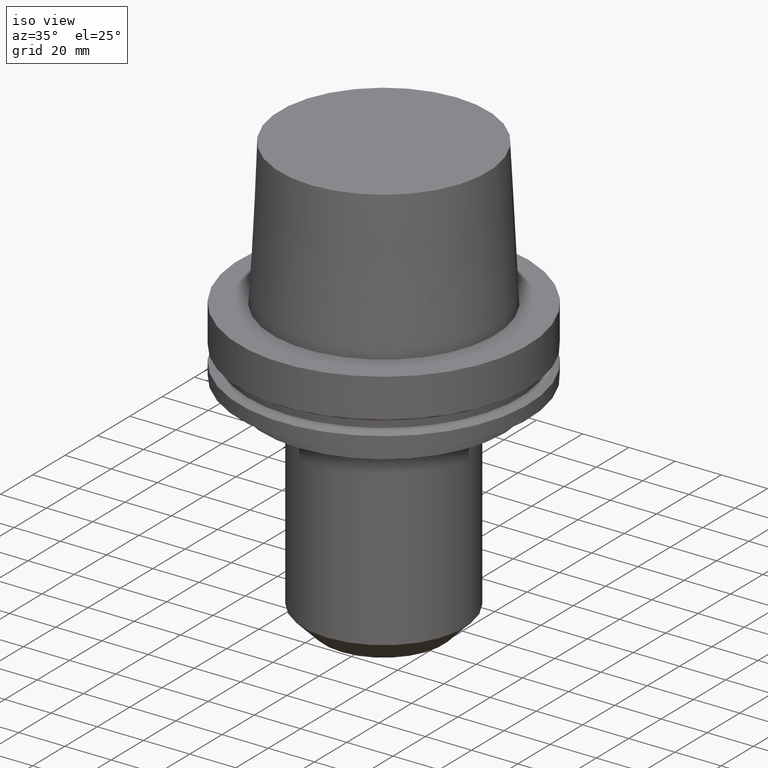
[diagram: clean part render]
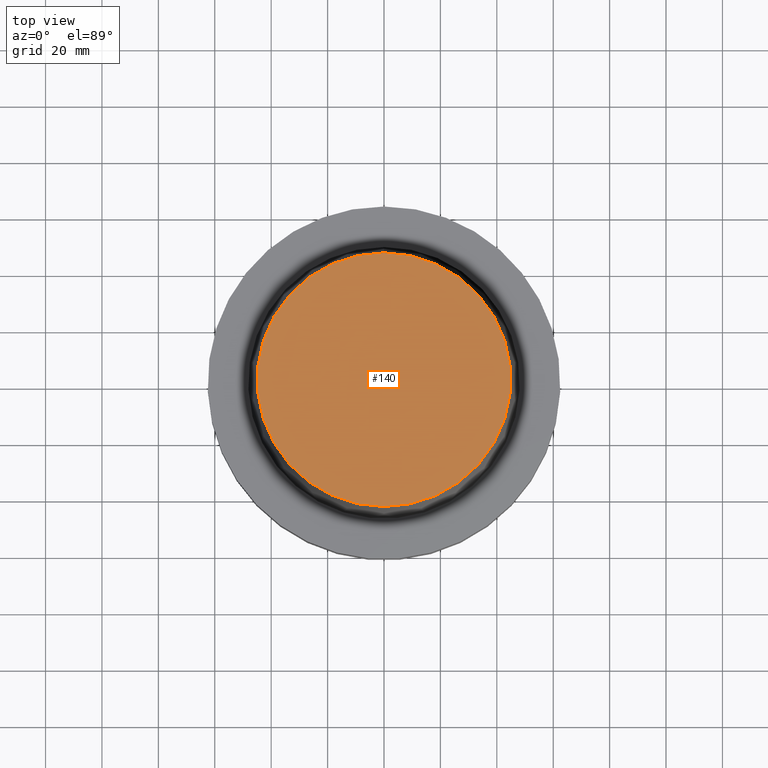
[diagram: tour spotlight — one face highlighted and labeled with its STEP entity id]
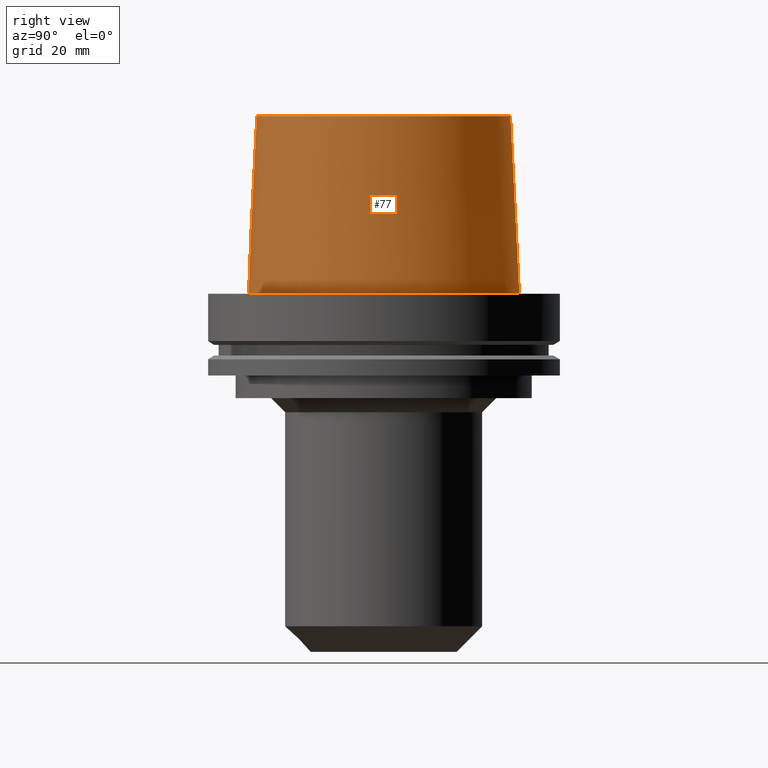
[diagram: tour spotlight — one face highlighted and labeled with its STEP entity id]
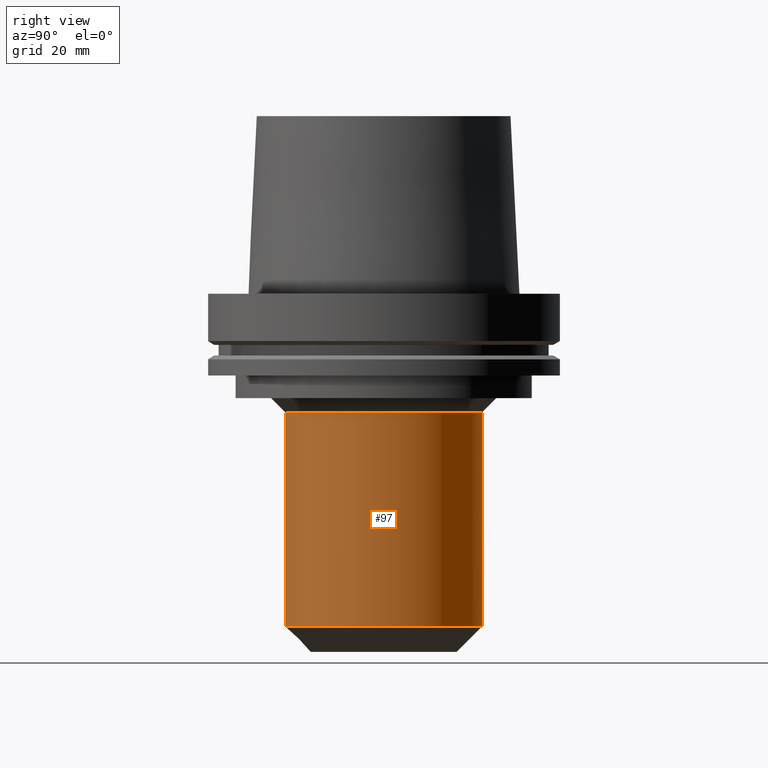
[diagram: tour spotlight — one face highlighted and labeled with its STEP entity id]
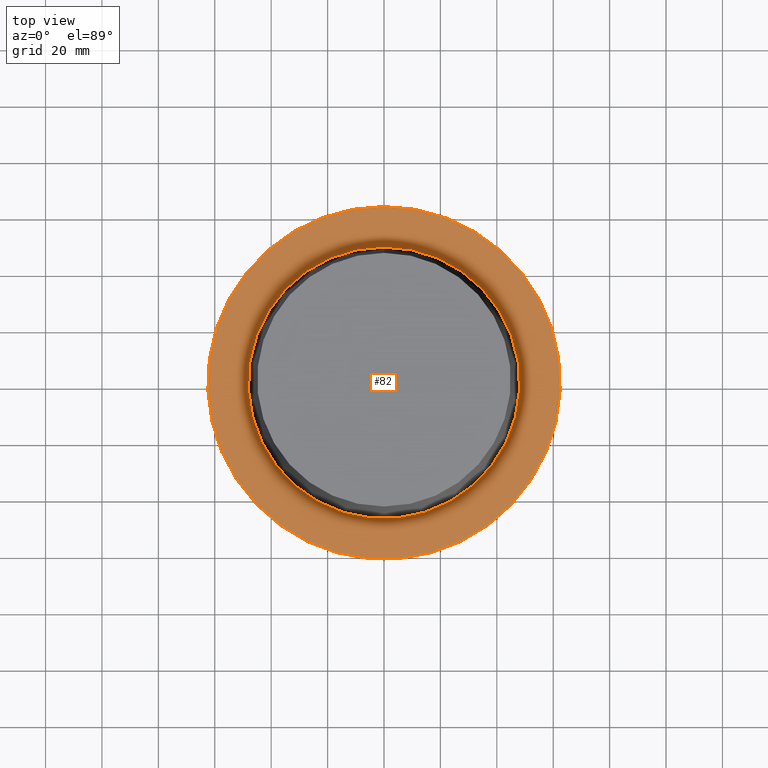
[diagram: tour spotlight — one face highlighted and labeled with its STEP entity id]
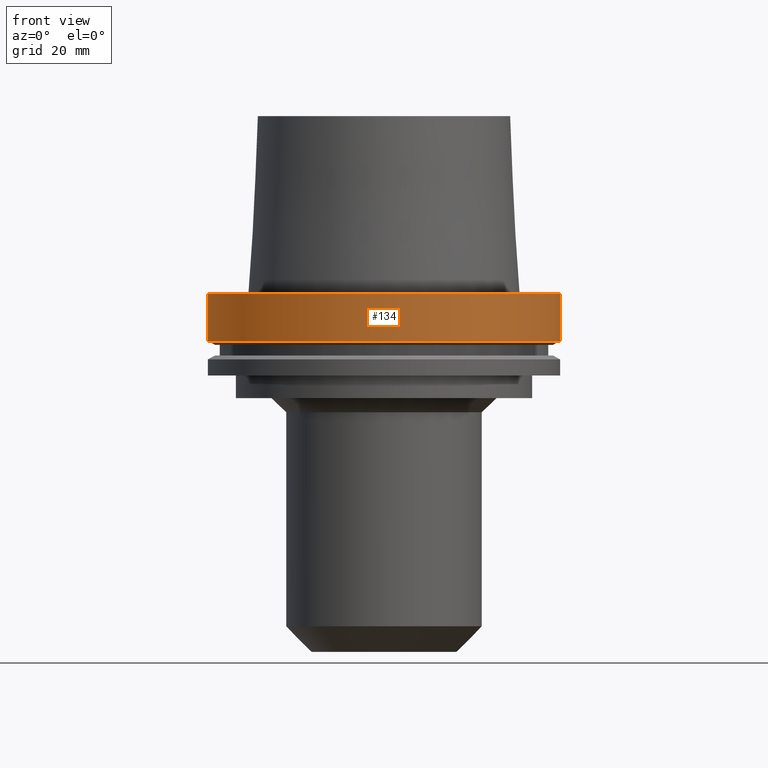
[diagram: tour spotlight — one face highlighted and labeled with its STEP entity id]
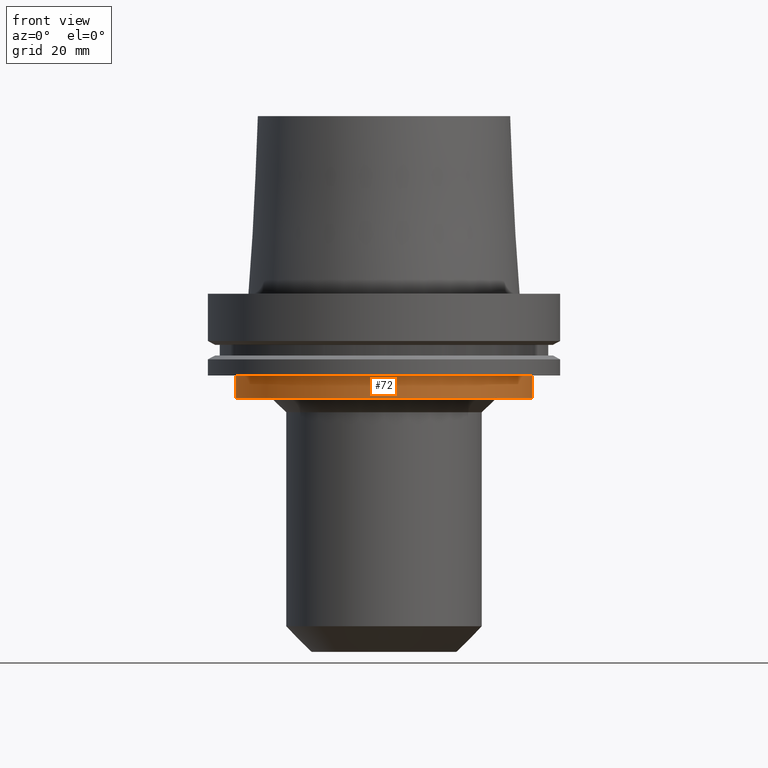
[diagram: tour spotlight — one face highlighted and labeled with its STEP entity id]
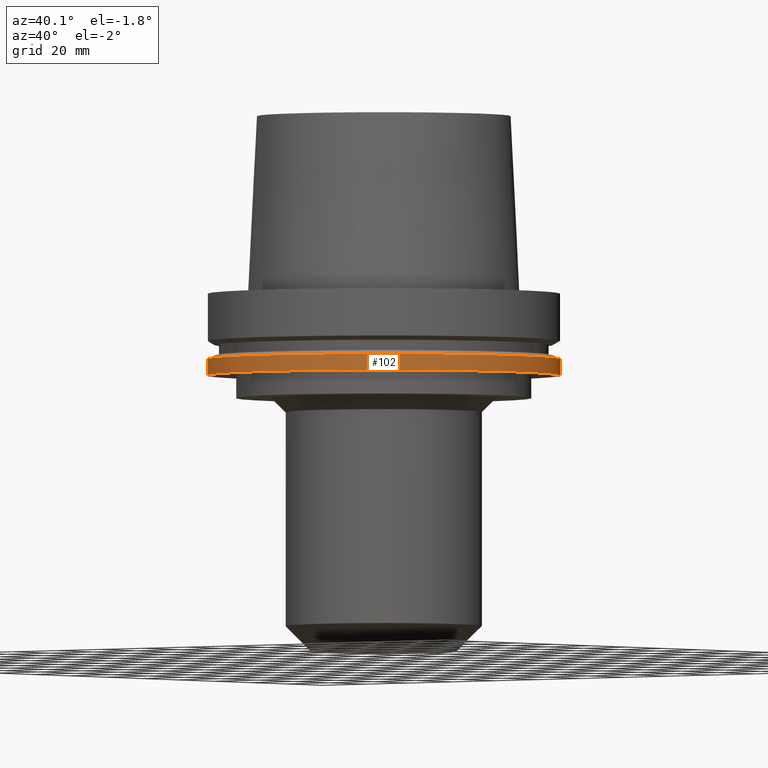
[diagram: tour spotlight — one face highlighted and labeled with its STEP entity id]
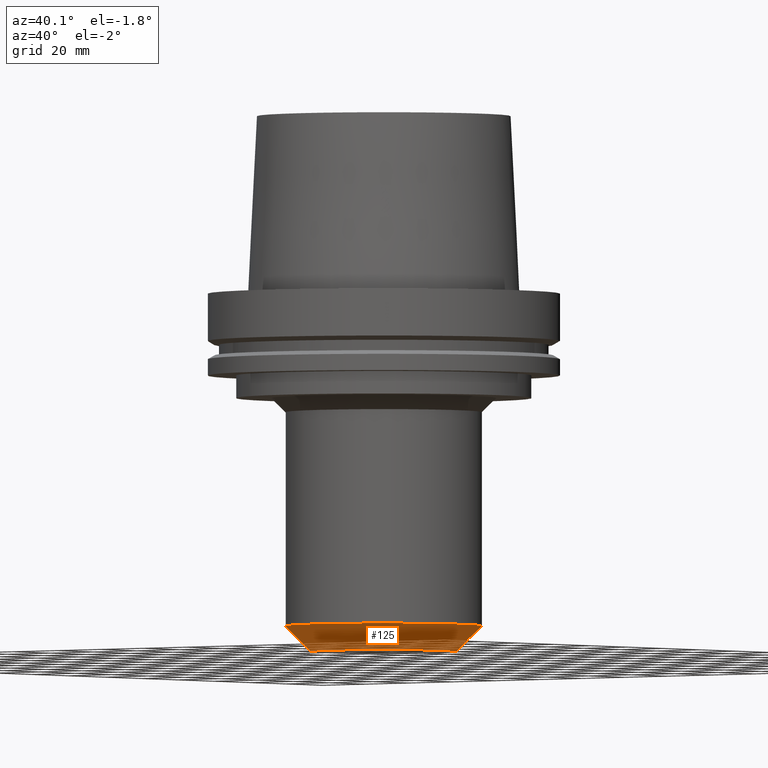
[diagram: tour spotlight — one face highlighted and labeled with its STEP entity id]
A machine part: a face-by-face anatomy tour. The part has 17 B-rep faces; the first image is the clean iso view, then the 8 largest visible faces are spotlighted one at a time (largest first), each with its STEP entity span.

Face 1 — top view, entity #140. In plain terms, the highlighted planar face has unit normal (-0, -0, 1).
Definition (entity closure, byte-faithful):
#74=EDGE_CURVE('Unnamed[1]',#183,#183,#184,.T.);
#140=ADVANCED_FACE('Unnamed[1]',(#288),#289,.T.);
#183=VERTEX_POINT('',#329);
#184=CIRCLE('',#330,44.9779398797591);
#288=FACE_OUTER_BOUND('',#460,.T.);
#289=PLANE('',#461);
#329=CARTESIAN_POINT('',(-3.85763741731415E-015,44.9779398797591,62.9999999999999));
#330=AXIS2_PLACEMENT_3D('',#491,#492,#493);
#460=EDGE_LOOP('',(#609));
#461=AXIS2_PLACEMENT_3D('',#610,#611,#612);
#491=CARTESIAN_POINT('',(-3.85763741731415E-015,-7.71527483462831E-015,62.9999999999999));
#492=DIRECTION('',(6.12323399573677E-017,1.22464679914735E-016,-1.0));
#493=DIRECTION('',(-1.23259516440783E-032,1.0,1.22464679914735E-016));
#609=ORIENTED_EDGE('',*,*,#74,.F.);
#610=CARTESIAN_POINT('',(-3.85763741731415E-015,22.4889699398795,62.9999999999999));
#611=DIRECTION('',(-6.12323399573677E-017,-1.22464679914735E-016,1.0));
#612=DIRECTION('',(1.23259516440783E-032,-1.0,-1.22464679914735E-016));

Face 2 — right view, entity #77. In plain terms, the highlighted conical surface has half-angle 2.868 deg.
Definition (entity closure, byte-faithful):
#74=EDGE_CURVE('Unnamed[1]',#183,#183,#184,.T.);
#77=ADVANCED_FACE('Unnamed[1]',(#187,#188),#189,.T.);
#79=EDGE_CURVE('Unnamed[1]',#191,#191,#192,.T.);
#183=VERTEX_POINT('',#329);
#184=CIRCLE('',#330,44.9779398797591);
#187=FACE_BOUND('',#334,.T.);
#188=FACE_BOUND('',#335,.T.);
#189=CONICAL_SURFACE('',#336,46.5560961923844,0.0500583457465986);
#191=VERTEX_POINT('',#339);
#192=CIRCLE('',#340,48.1342525050097);
#329=CARTESIAN_POINT('',(-3.85763741731415E-015,44.9779398797591,62.9999999999999));
#330=AXIS2_PLACEMENT_3D('',#491,#492,#493);
#334=EDGE_LOOP('',(#495));
#335=EDGE_LOOP('',(#496));
#336=AXIS2_PLACEMENT_3D('',#497,#498,#499);
#339=CARTESIAN_POINT('',(4.05732016845377E-029,48.1342525050097,-6.66405254174039E-013));
#340=AXIS2_PLACEMENT_3D('',#500,#501,#502);
#491=CARTESIAN_POINT('',(-3.85763741731415E-015,-7.71527483462831E-015,62.9999999999999));
#492=DIRECTION('',(6.12323399573677E-017,1.22464679914735E-016,-1.0));
#493=DIRECTION('',(-1.23259516440783E-032,1.0,1.22464679914735E-016));
#495=ORIENTED_EDGE('',*,*,#79,.F.);
#496=ORIENTED_EDGE('',*,*,#74,.T.);
#497=CARTESIAN_POINT('',(-1.92881870865706E-015,-3.85763741731411E-015,31.4999999999996));
#498=DIRECTION('',(6.12323399573677E-017,1.22464679914735E-016,-1.0));
#499=DIRECTION('',(-1.23259516440783E-032,1.0,1.22464679914735E-016));
#500=CARTESIAN_POINT('',(4.08977026892825E-029,8.1795405378565E-029,-6.67910171614494E-013));
#501=DIRECTION('',(6.12323399573677E-017,1.22464679914735E-016,-1.0));
#502=DIRECTION('',(-1.23259516440783E-032,1.0,1.22464679914735E-016));

Face 3 — right view, entity #97. In plain terms, the highlighted cylindrical surface (bore or boss wall) has radius 34.925 mm, axis along (0, 0, -1).
Definition (entity closure, byte-faithful):
#58=EDGE_CURVE('Unnamed[1]',#160,#160,#161,.T.);
#97=ADVANCED_FACE('Unnamed[1]',(#218,#219),#220,.T.);
#111=EDGE_CURVE('Unnamed[1]',#241,#241,#242,.T.);
#160=VERTEX_POINT('',#301);
#161=CIRCLE('',#302,34.9249999999999);
#218=FACE_BOUND('',#374,.T.);
#219=FACE_BOUND('',#375,.T.);
#220=CYLINDRICAL_SURFACE('',#376,34.9249999999999);
#241=VERTEX_POINT('',#403);
#242=CIRCLE('',#404,34.9249999999999);
#301=CARTESIAN_POINT('',(2.57175827820967E-015,34.9249999999999,-42.0000000000037));
#302=AXIS2_PLACEMENT_3D('',#467,#468,#469);
#374=EDGE_LOOP('',(#528));
#375=EDGE_LOOP('',(#529));
#376=AXIS2_PLACEMENT_3D('',#530,#531,#532);
#403=CARTESIAN_POINT('',(7.21929288097387E-015,34.9249999999999,-117.900000000004));
#404=AXIS2_PLACEMENT_3D('',#554,#555,#556);
#467=CARTESIAN_POINT('',(2.57175827820967E-015,5.14351655641934E-015,-42.0000000000037));
#468=DIRECTION('',(6.12323399573677E-017,1.22464679914735E-016,-1.0));
#469=DIRECTION('',(-1.23259516440783E-032,1.0,1.22464679914735E-016));
#528=ORIENTED_EDGE('',*,*,#111,.F.);
#529=ORIENTED_EDGE('',*,*,#58,.T.);
#530=CARTESIAN_POINT('',(4.89552557959177E-015,9.79105115918353E-015,-79.9500000000037));
#531=DIRECTION('',(6.12323399573677E-017,1.22464679914735E-016,-1.0));
#532=DIRECTION('',(-1.23259516440783E-032,1.0,1.22464679914735E-016));
#554=CARTESIAN_POINT('',(7.21929288097387E-015,1.44385857619477E-014,-117.900000000004));
#555=DIRECTION('',(6.12323399573677E-017,1.22464679914735E-016,-1.0));
#556=DIRECTION('',(-1.23259516440783E-032,1.0,1.22464679914735E-016));

Face 4 — top view, entity #82. In plain terms, the highlighted planar face has unit normal (-0, -0, 1).
Definition (entity closure, byte-faithful):
#79=EDGE_CURVE('Unnamed[1]',#191,#191,#192,.T.);
#82=ADVANCED_FACE('Unnamed[1]',(#195,#196),#197,.T.);
#90=EDGE_CURVE('Unnamed[1]',#208,#208,#209,.T.);
#191=VERTEX_POINT('',#339);
#192=CIRCLE('',#340,48.1342525050097);
#195=FACE_OUTER_BOUND('',#344,.T.);
#196=FACE_BOUND('',#345,.T.);
#197=PLANE('',#346);
#208=VERTEX_POINT('',#361);
#209=CIRCLE('',#362,62.5000000000002);
#339=CARTESIAN_POINT('',(4.05732016845377E-029,48.1342525050097,-6.66405254174039E-013));
#340=AXIS2_PLACEMENT_3D('',#500,#501,#502);
#344=EDGE_LOOP('',(#504));
#345=EDGE_LOOP('',(#505));
#346=AXIS2_PLACEMENT_3D('',#506,#507,#508);
#361=CARTESIAN_POINT('',(-3.85035867761049E-030,62.5000000000002,5.7954042494671E-014));
#362=AXIS2_PLACEMENT_3D('',#518,#519,#520);
#500=CARTESIAN_POINT('',(4.08977026892825E-029,8.1795405378565E-029,-6.67910171614494E-013));
#501=DIRECTION('',(6.12323399573677E-017,1.22464679914735E-016,-1.0));
#502=DIRECTION('',(-1.23259516440783E-032,1.0,1.22464679914735E-016));
#504=ORIENTED_EDGE('',*,*,#90,.F.);
#505=ORIENTED_EDGE('',*,*,#79,.T.);
#506=CARTESIAN_POINT('',(1.83614215034636E-029,55.317126252505,-3.04225605839684E-013));
#507=DIRECTION('',(-6.12323399573677E-017,-5.04226666187264E-014,1.0));
#508=DIRECTION('',(3.09232501668564E-030,-1.0,-5.04226666187264E-014));
#518=CARTESIAN_POINT('',(-3.48065554802404E-030,-6.96131109604808E-030,5.6843418860808E-014));
#519=DIRECTION('',(6.12323399573677E-017,1.22464679914735E-016,-1.0));
#520=DIRECTION('',(-1.23259516440783E-032,1.0,1.22464679914735E-016));

Face 5 — front view, entity #134. In plain terms, the highlighted cylindrical surface (bore or boss wall) has radius 62.5 mm, axis along (0, 0, -1).
Definition (entity closure, byte-faithful):
#90=EDGE_CURVE('Unnamed[1]',#208,#208,#209,.T.);
#92=EDGE_CURVE('Unnamed[1]',#211,#211,#212,.T.);
#134=ADVANCED_FACE('Unnamed[1]',(#278,#279),#280,.T.);
#208=VERTEX_POINT('',#361);
#209=CIRCLE('',#362,62.5000000000002);
#211=VERTEX_POINT('',#365);
#212=CIRCLE('',#366,62.5);
#278=FACE_BOUND('',#448,.T.);
#279=FACE_BOUND('',#449,.T.);
#280=CYLINDRICAL_SURFACE('',#450,62.5000000000001);
#361=CARTESIAN_POINT('',(-3.85035867761049E-030,62.5000000000002,5.7954042494671E-014));
#362=AXIS2_PLACEMENT_3D('',#518,#519,#520);
#365=CARTESIAN_POINT('',(1.02578894188644E-015,62.5,-16.7524047358084));
#366=AXIS2_PLACEMENT_3D('',#521,#522,#523);
#448=EDGE_LOOP('',(#597));
#449=EDGE_LOOP('',(#598));
#450=AXIS2_PLACEMENT_3D('',#599,#600,#601);
#518=CARTESIAN_POINT('',(-3.48065554802404E-030,-6.96131109604808E-030,5.6843418860808E-014));
#519=DIRECTION('',(6.12323399573677E-017,1.22464679914735E-016,-1.0));
#520=DIRECTION('',(-1.23259516440783E-032,1.0,1.22464679914735E-016));
#521=CARTESIAN_POINT('',(1.02578894188644E-015,2.05157788377287E-015,-16.7524047358084));
#522=DIRECTION('',(6.12323399573677E-017,1.22464679914735E-016,-1.0));
#523=DIRECTION('',(-1.23259516440783E-032,1.0,1.22464679914735E-016));
#597=ORIENTED_EDGE('',*,*,#92,.F.);
#598=ORIENTED_EDGE('',*,*,#90,.T.);
#599=CARTESIAN_POINT('',(5.12894470943217E-016,1.02578894188643E-015,-8.37620236790418));
#600=DIRECTION('',(6.12323399573677E-017,1.22464679914735E-016,-1.0));
#601=DIRECTION('',(-1.23259516440783E-032,1.0,1.22464679914735E-016));

Face 6 — front view, entity #72. In plain terms, the highlighted cylindrical surface (bore or boss wall) has radius 52.5 mm, axis along (0, 0, -1).
Definition (entity closure, byte-faithful):
#72=ADVANCED_FACE('Unnamed[1]',(#179,#180),#181,.T.);
#86=EDGE_CURVE('Unnamed[1]',#202,#202,#203,.T.);
#94=EDGE_CURVE('Unnamed[1]',#214,#214,#215,.T.);
#179=FACE_BOUND('',#324,.T.);
#180=FACE_BOUND('',#325,.T.);
#181=CYLINDRICAL_SURFACE('',#326,52.5);
#202=VERTEX_POINT('',#353);
#203=CIRCLE('',#354,52.4999999999997);
#214=VERTEX_POINT('',#369);
#215=CIRCLE('',#370,52.5000000000002);
#324=EDGE_LOOP('',(#486));
#325=EDGE_LOOP('',(#487));
#326=AXIS2_PLACEMENT_3D('',#488,#489,#490);
#353=CARTESIAN_POINT('',(2.26559657842284E-015,52.4999999999997,-37.0000000000038));
#354=AXIS2_PLACEMENT_3D('',#512,#513,#514);
#369=CARTESIAN_POINT('',(1.77573785876367E-015,52.5000000000002,-29.0000000000001));
#370=AXIS2_PLACEMENT_3D('',#524,#525,#526);
#486=ORIENTED_EDGE('',*,*,#86,.F.);
#487=ORIENTED_EDGE('',*,*,#94,.T.);
#488=CARTESIAN_POINT('',(2.02066721859325E-015,4.04133443718651E-015,-33.000000000002));
#489=DIRECTION('',(6.12323399573677E-017,1.22464679914735E-016,-1.0));
#490=DIRECTION('',(-1.23259516440783E-032,1.0,1.22464679914735E-016));
#512=CARTESIAN_POINT('',(2.26559657842284E-015,4.53119315684567E-015,-37.0000000000038));
#513=DIRECTION('',(6.12323399573677E-017,1.22464679914735E-016,-1.0));
#514=DIRECTION('',(-1.23259516440783E-032,1.0,1.22464679914735E-016));
#524=CARTESIAN_POINT('',(1.77573785876367E-015,3.55147571752733E-015,-29.0000000000001));
#525=DIRECTION('',(6.12323399573676E-017,1.22464679914735E-016,-1.0));
#526=DIRECTION('',(-1.23259516440783E-032,1.0,1.22464679914735E-016));

Face 7 — auxiliary view, entity #102. In plain terms, the highlighted cylindrical surface (bore or boss wall) has radius 62.5 mm, axis along (0, 0, -1).
Definition (entity closure, byte-faithful):
#99=EDGE_CURVE('Unnamed[1]',#222,#222,#223,.T.);
#102=ADVANCED_FACE('Unnamed[1]',(#226,#227),#228,.T.);
#109=EDGE_CURVE('Unnamed[1]',#238,#238,#239,.T.);
#222=VERTEX_POINT('',#379);
#223=CIRCLE('',#380,62.5);
#226=FACE_BOUND('',#384,.T.);
#227=FACE_BOUND('',#385,.T.);
#228=CYLINDRICAL_SURFACE('',#386,62.5);
#238=VERTEX_POINT('',#399);
#239=CIRCLE('',#400,62.5);
#379=CARTESIAN_POINT('',(1.77573785876367E-015,62.5,-29.0000000000001));
#380=AXIS2_PLACEMENT_3D('',#533,#534,#535);
#384=EDGE_LOOP('',(#537));
#385=EDGE_LOOP('',(#538));
#386=AXIS2_PLACEMENT_3D('',#539,#540,#541);
#399=CARTESIAN_POINT('',(1.42350465640827E-015,62.5,-23.2475952641916));
#400=AXIS2_PLACEMENT_3D('',#551,#552,#553);
#533=CARTESIAN_POINT('',(1.77573785876367E-015,3.55147571752733E-015,-29.0000000000001));
#534=DIRECTION('',(6.12323399573677E-017,1.22464679914735E-016,-1.0));
#535=DIRECTION('',(-1.23259516440783E-032,1.0,1.22464679914735E-016));
#537=ORIENTED_EDGE('',*,*,#99,.F.);
#538=ORIENTED_EDGE('',*,*,#109,.T.);
#539=CARTESIAN_POINT('',(1.59962125758597E-015,3.19924251517194E-015,-26.1237976320959));
#540=DIRECTION('',(6.12323399573677E-017,1.22464679914735E-016,-1.0));
#541=DIRECTION('',(-1.23259516440783E-032,1.0,1.22464679914735E-016));
#551=CARTESIAN_POINT('',(1.42350465640827E-015,2.84700931281654E-015,-23.2475952641916));
#552=DIRECTION('',(6.12323399573677E-017,1.22464679914735E-016,-1.0));
#553=DIRECTION('',(-1.23259516440783E-032,1.0,1.22464679914735E-016));

Face 8 — auxiliary view, entity #125. In plain terms, the highlighted conical surface has half-angle 45 deg.
Definition (entity closure, byte-faithful):
#111=EDGE_CURVE('Unnamed[1]',#241,#241,#242,.T.);
#113=EDGE_CURVE('Unnamed[1]',#244,#244,#245,.T.);
#125=ADVANCED_FACE('Unnamed[1]',(#263,#264),#265,.T.);
#241=VERTEX_POINT('',#403);
#242=CIRCLE('',#404,34.9249999999999);
#244=VERTEX_POINT('',#407);
#245=CIRCLE('',#408,25.8249999999999);
#263=FACE_BOUND('',#430,.T.);
#264=FACE_BOUND('',#431,.T.);
#265=CONICAL_SURFACE('',#432,30.3749999999999,0.785398163397461);
#403=CARTESIAN_POINT('',(7.21929288097387E-015,34.9249999999999,-117.900000000004));
#404=AXIS2_PLACEMENT_3D('',#554,#555,#556);
#407=CARTESIAN_POINT('',(7.77650717458589E-015,25.825,-127.000000000003));
#408=AXIS2_PLACEMENT_3D('',#557,#558,#559);
#430=EDGE_LOOP('',(#579));
#431=EDGE_LOOP('',(#580));
#432=AXIS2_PLACEMENT_3D('',#581,#582,#583);
#554=CARTESIAN_POINT('',(7.21929288097387E-015,1.44385857619477E-014,-117.900000000004));
#555=DIRECTION('',(6.12323399573677E-017,1.22464679914735E-016,-1.0));
#556=DIRECTION('',(-1.23259516440783E-032,1.0,1.22464679914735E-016));
#557=CARTESIAN_POINT('',(7.77650717458589E-015,1.55530143491718E-014,-127.000000000003));
#558=DIRECTION('',(6.12323399573677E-017,1.22464679914735E-016,-1.0));
#559=DIRECTION('',(-1.23259516440783E-032,1.0,1.22464679914735E-016));
#579=ORIENTED_EDGE('',*,*,#113,.F.);
#580=ORIENTED_EDGE('',*,*,#111,.T.);
#581=CARTESIAN_POINT('',(7.49790002777988E-015,1.49958000555598E-014,-122.450000000003));
#582=DIRECTION('',(-6.12323399573677E-017,-1.22464679914735E-016,1.0));
#583=DIRECTION('',(-1.23259516440783E-032,1.0,1.22464679914735E-016));